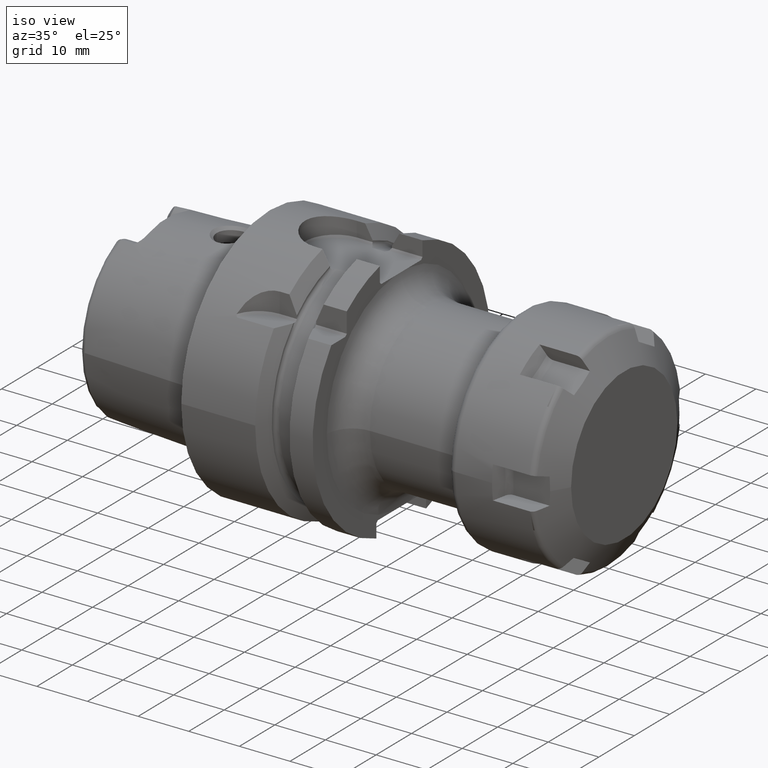
[diagram: clean part render]
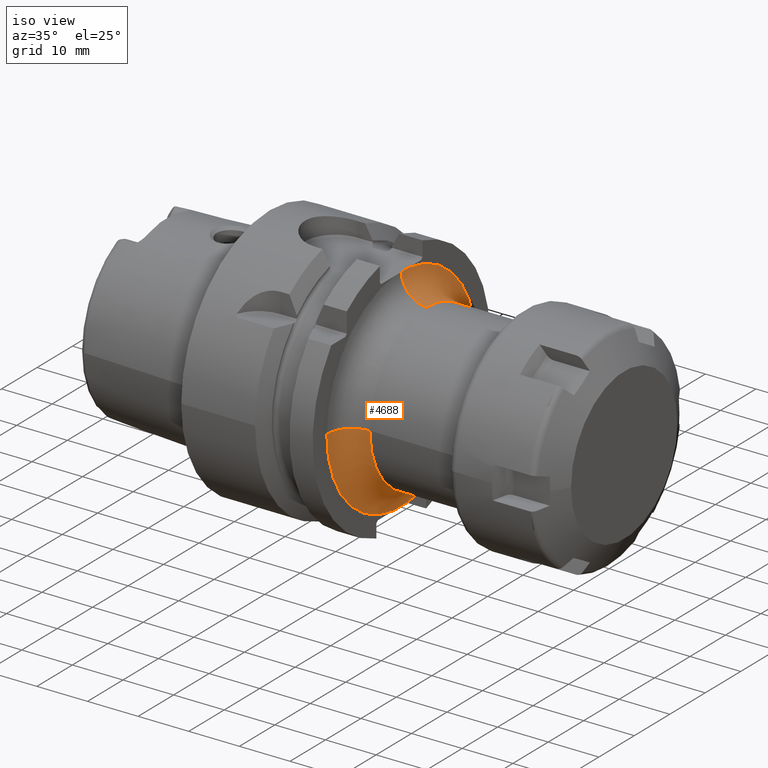
[diagram: same view with one face highlighted and labeled with its STEP entity id]
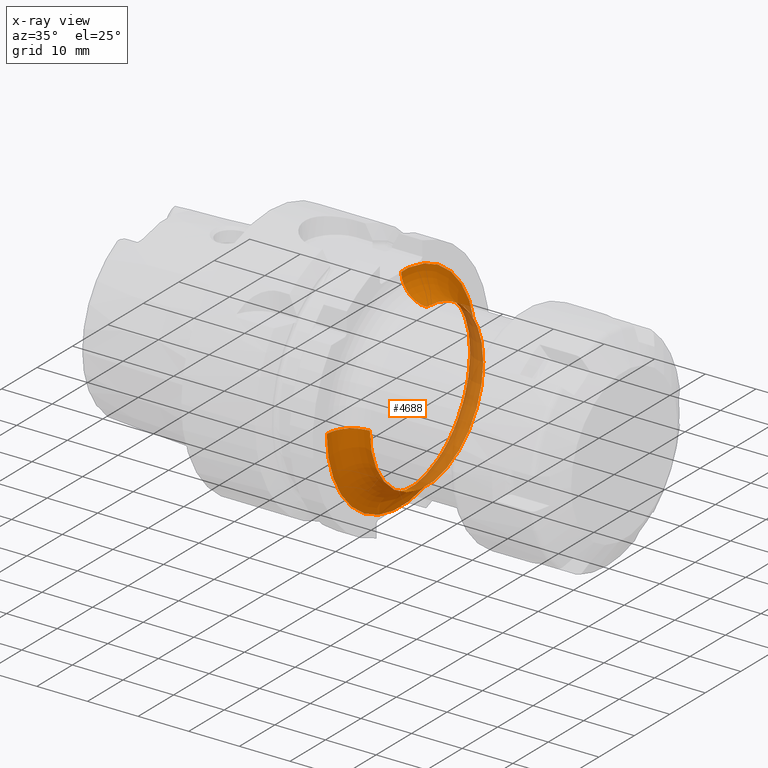
[diagram: x-ray of the same camera — body ghosted, the highlighted face saturated]
A machine part, iso view. The second image highlights one B-rep face of the part: STEP entity #4688.
The next image is the same camera in x-ray: the body ghosted, the highlighted face saturated — about 29% of this face is hidden behind the body in this view.
In plain terms, the highlighted toroidal blend (fillet) surface has major radius 21 mm and minor (blend) radius 5 mm.
Its self-contained STEP definition (entity closure, byte-faithful):
#1363=CARTESIAN_POINT('',(2.595E1,2.046887956189E0,-2.090000870320E1));
#1364=CARTESIAN_POINT('',(2.595E1,1.592343181002E0,-2.090000870320E1));
#1365=CARTESIAN_POINT('',(2.595105271241E1,6.831120124853E-1,
-2.089999687113E1));
#1366=CARTESIAN_POINT('',(2.595105271226E1,-6.831118757620E-1,
-2.089999789623E1));
#1367=CARTESIAN_POINT('',(2.595E1,-1.592344024631E0,-2.090000699470E1));
#1368=CARTESIAN_POINT('',(2.595E1,-2.046888745637E0,-2.090000699470E1));
#1370=CARTESIAN_POINT('',(3.095E1,-2.1E1,2.093464290809E-13));
#1371=DIRECTION('',(0.E0,0.E0,-1.E0));
#1372=DIRECTION('',(-1.E0,0.E0,0.E0));
#1373=AXIS2_PLACEMENT_3D('',#1370,#1371,#1372);
#1375=CARTESIAN_POINT('',(3.095E1,0.E0,0.E0));
#1376=DIRECTION('',(1.E0,0.E0,0.E0));
#1377=DIRECTION('',(0.E0,-1.E0,0.E0));
#1378=AXIS2_PLACEMENT_3D('',#1375,#1376,#1377);
#1380=CARTESIAN_POINT('',(2.595E1,0.E0,0.E0));
#1381=DIRECTION('',(-1.E0,0.E0,0.E0));
#1382=DIRECTION('',(0.E0,9.747538297664E-2,9.952379362311E-1));
#1383=AXIS2_PLACEMENT_3D('',#1380,#1381,#1382);
#1385=CARTESIAN_POINT('',(2.595E1,0.E0,0.E0));
#1386=DIRECTION('',(1.E0,0.E0,0.E0));
#1387=DIRECTION('',(0.E0,-1.E0,0.E0));
#1388=AXIS2_PLACEMENT_3D('',#1385,#1386,#1387);
#1612=CARTESIAN_POINT('',(2.595100009998E1,-2.830727837943E-4,2.09E1));
#1692=CARTESIAN_POINT('',(2.595E1,2.046888670757E0,2.090000702701E1));
#1693=CARTESIAN_POINT('',(2.595E1,1.819650086002E0,2.090000702701E1));
#1694=CARTESIAN_POINT('',(2.595028665999E1,1.365107372105E0,2.089999672073E1));
#1695=CARTESIAN_POINT('',(2.595084304173E1,6.826981894974E-1,2.090000093693E1));
#1696=CARTESIAN_POINT('',(2.595100016168E1,2.274353253195E-1,2.09E1));
#1697=CARTESIAN_POINT('',(2.595100009998E1,-2.830727837943E-4,2.09E1));
#1699=CARTESIAN_POINT('',(3.095E1,-2.844271990096E-4,2.099999999807E1));
#1700=DIRECTION('',(0.E0,-9.999999999083E-1,-1.354415233379E-5));
#1701=DIRECTION('',(-9.997999800037E-1,2.708830414830E-7,-1.999999961477E-2));
#1702=AXIS2_PLACEMENT_3D('',#1699,#1700,#1701);
#1709=CARTESIAN_POINT('',(3.095E1,0.E0,0.E0));
#1710=DIRECTION('',(1.E0,0.E0,0.E0));
#1711=DIRECTION('',(0.E0,1.E0,0.E0));
#1712=AXIS2_PLACEMENT_3D('',#1709,#1710,#1711);
#3229=CARTESIAN_POINT('',(2.595E1,-2.1E1,0.E0));
#3230=CARTESIAN_POINT('',(2.595E1,-2.046982284805E0,-2.089999673506E1));
#3231=VERTEX_POINT('',#3229);
#3232=VERTEX_POINT('',#3230);
#3235=VERTEX_POINT('',#1612);
#3236=CARTESIAN_POINT('',(3.095E1,-1.962306972235E-4,1.599999999880E1));
#3237=CARTESIAN_POINT('',(3.095E1,-1.6E1,0.E0));
#3238=VERTEX_POINT('',#3236);
#3239=VERTEX_POINT('',#3237);
#3240=VERTEX_POINT('',#1692);
#3241=CARTESIAN_POINT('',(3.095E1,1.6E1,0.E0));
#3242=VERTEX_POINT('',#3241);
#3243=CARTESIAN_POINT('',(2.595E1,2.046887956189E0,-2.090000870320E1));
#3244=VERTEX_POINT('',#3243);
#4666=CARTESIAN_POINT('',(3.095E1,0.E0,0.E0));
#4667=DIRECTION('',(1.E0,0.E0,0.E0));
#4668=DIRECTION('',(0.E0,9.999884548084E-1,-4.805231507475E-3));
#4669=AXIS2_PLACEMENT_3D('',#4666,#4667,#4668);
#4670=TOROIDAL_SURFACE('',#4669,2.1E1,5.E0);
#4671=ORIENTED_EDGE('',*,*,#4635,.T.);
#4673=ORIENTED_EDGE('',*,*,#4672,.F.);
#4675=ORIENTED_EDGE('',*,*,#4674,.T.);
#4677=ORIENTED_EDGE('',*,*,#4676,.T.);
#4679=ORIENTED_EDGE('',*,*,#4678,.T.);
#4681=ORIENTED_EDGE('',*,*,#4680,.F.);
#4683=ORIENTED_EDGE('',*,*,#4682,.F.);
#4685=ORIENTED_EDGE('',*,*,#4684,.T.);
#4686=EDGE_LOOP('',(#4671,#4673,#4675,#4677,#4679,#4681,#4683,#4685));
#4687=FACE_OUTER_BOUND('',#4686,.F.);
#4688=ADVANCED_FACE('',(#4687),#4670,.F.);
#1369=B_SPLINE_CURVE_WITH_KNOTS('',3,(#1363,#1364,#1365,#1366,#1367,#1368),
.UNSPECIFIED.,.F.,.F.,(4,1,1,4),(0.E0,3.333333333333E-1,6.666666666667E-1,1.E0),
.UNSPECIFIED.);
#1374=CIRCLE('',#1373,5.E0);
#1379=CIRCLE('',#1378,1.6E1);
#1384=CIRCLE('',#1383,2.1E1);
#1389=CIRCLE('',#1388,2.1E1);
#1698=B_SPLINE_CURVE_WITH_KNOTS('',3,(#1692,#1693,#1694,#1695,#1696,#1697),
.UNSPECIFIED.,.F.,.F.,(4,1,1,4),(0.E0,3.333333333333E-1,6.666666666667E-1,1.E0),
.UNSPECIFIED.);
#1703=CIRCLE('',#1702,5.E0);
#1713=CIRCLE('',#1712,1.6E1);
#4635=EDGE_CURVE('',#3244,#3232,#1369,.T.);
#4672=EDGE_CURVE('',#3231,#3232,#1389,.T.);
#4674=EDGE_CURVE('',#3231,#3239,#1374,.T.);
#4676=EDGE_CURVE('',#3239,#3242,#1379,.T.);
#4678=EDGE_CURVE('',#3242,#3238,#1713,.T.);
#4680=EDGE_CURVE('',#3235,#3238,#1703,.T.);
#4682=EDGE_CURVE('',#3240,#3235,#1698,.T.);
#4684=EDGE_CURVE('',#3240,#3244,#1384,.T.);